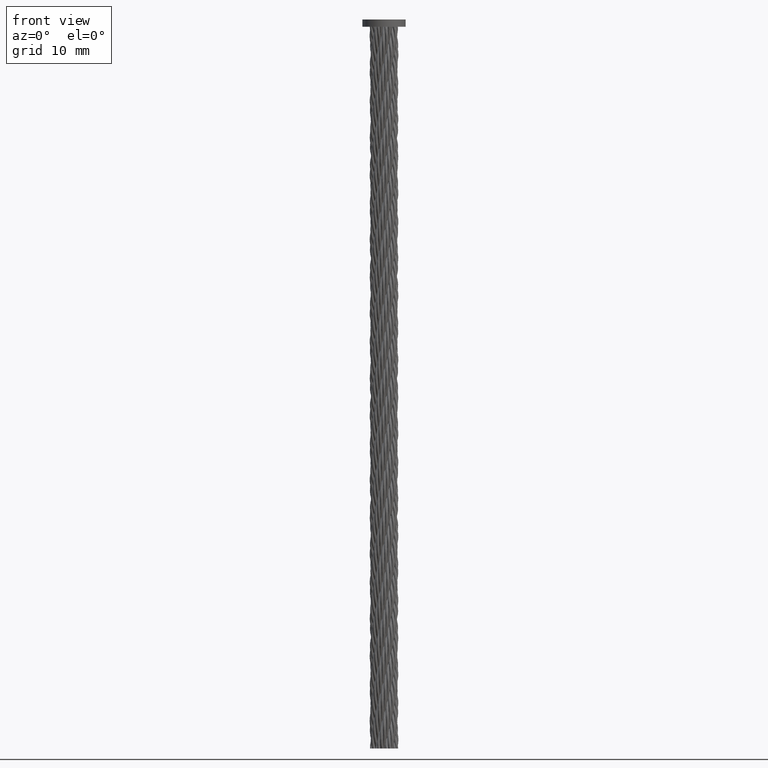
[diagram: clean part render]
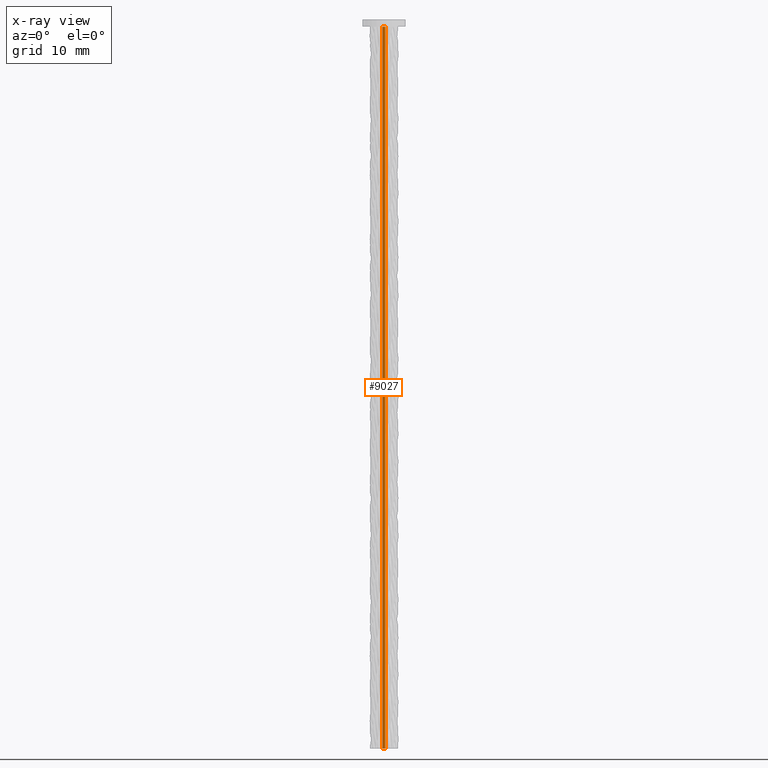
[diagram: x-ray — body ghosted, one internal face saturated and labeled with its STEP entity id]
A machine part, front view, then the same camera in x-ray: the body is ghosted and one INTERNAL B-rep face — a face not visible from any outside direction — is saturated and labeled: STEP entity #9027.
In plain terms, the highlighted cylindrical surface (bore or boss wall) has radius 0.2222 mm, axis along (0, 0, -1).
Its self-contained STEP definition (entity closure, byte-faithful):
#380 = ORIENTED_EDGE ( 'NONE', *, *, #45396, .T. ) ;
#4635 = CARTESIAN_POINT ( 'NONE',  ( 0.2222222222222222654, 0.000000000000000000, 0.000000000000000000 ) ) ;
#8874 = AXIS2_PLACEMENT_3D ( 'NONE', #25758, #40301, #33094 ) ;
#9027 = ADVANCED_FACE ( 'NONE', ( #26937, #27528 ), #32695, .T. ) ;
#9848 = EDGE_CURVE ( 'NONE', #23408, #23408, #33229, .T. ) ;
#11983 = CARTESIAN_POINT ( 'NONE',  ( 0.000000000000000000, 0.000000000000000000, 0.000000000000000000 ) ) ;
#15824 = DIRECTION ( 'NONE',  ( -1.000000000000000000, 0.000000000000000000, 0.000000000000000000 ) ) ;
#15877 = DIRECTION ( 'NONE',  ( 1.000000000000000000, 0.000000000000000000, 0.000000000000000000 ) ) ;
#16186 = CARTESIAN_POINT ( 'NONE',  ( 0.000000000000000000, 0.000000000000000000, 0.000000000000000000 ) ) ;
#17732 = VERTEX_POINT ( 'NONE', #41570 ) ;
#22291 = CIRCLE ( 'NONE', #8874, 0.2222222222222222654 ) ;
#23408 = VERTEX_POINT ( 'NONE', #4635 ) ;
#25228 = EDGE_LOOP ( 'NONE', ( #380 ) ) ;
#25758 = CARTESIAN_POINT ( 'NONE',  ( 0.000000000000000000, 0.000000000000000000, -100.0000000000000000 ) ) ;
#26937 = FACE_OUTER_BOUND ( 'NONE', #25228, .T. ) ;
#27205 = DIRECTION ( 'NONE',  ( 0.000000000000000000, 0.000000000000000000, 1.000000000000000000 ) ) ;
#27528 = FACE_OUTER_BOUND ( 'NONE', #47199, .T. ) ;
#30191 = DIRECTION ( 'NONE',  ( 0.000000000000000000, 0.000000000000000000, -1.000000000000000000 ) ) ;
#32695 = CYLINDRICAL_SURFACE ( 'NONE', #38220, 0.2222222222222222654 ) ;
#33094 = DIRECTION ( 'NONE',  ( 1.000000000000000000, 0.000000000000000000, 0.000000000000000000 ) ) ;
#33229 = CIRCLE ( 'NONE', #45569, 0.2222222222222222654 ) ;
#38220 = AXIS2_PLACEMENT_3D ( 'NONE', #11983, #30191, #15824 ) ;
#40301 = DIRECTION ( 'NONE',  ( 0.000000000000000000, 0.000000000000000000, 1.000000000000000000 ) ) ;
#41570 = CARTESIAN_POINT ( 'NONE',  ( 0.2222222222222222654, 0.000000000000000000, -100.0000000000000000 ) ) ;
#45396 = EDGE_CURVE ( 'NONE', #17732, #17732, #22291, .T. ) ;
#45569 = AXIS2_PLACEMENT_3D ( 'NONE', #16186, #27205, #15877 ) ;
#46519 = ORIENTED_EDGE ( 'NONE', *, *, #9848, .F. ) ;
#47199 = EDGE_LOOP ( 'NONE', ( #46519 ) ) ;